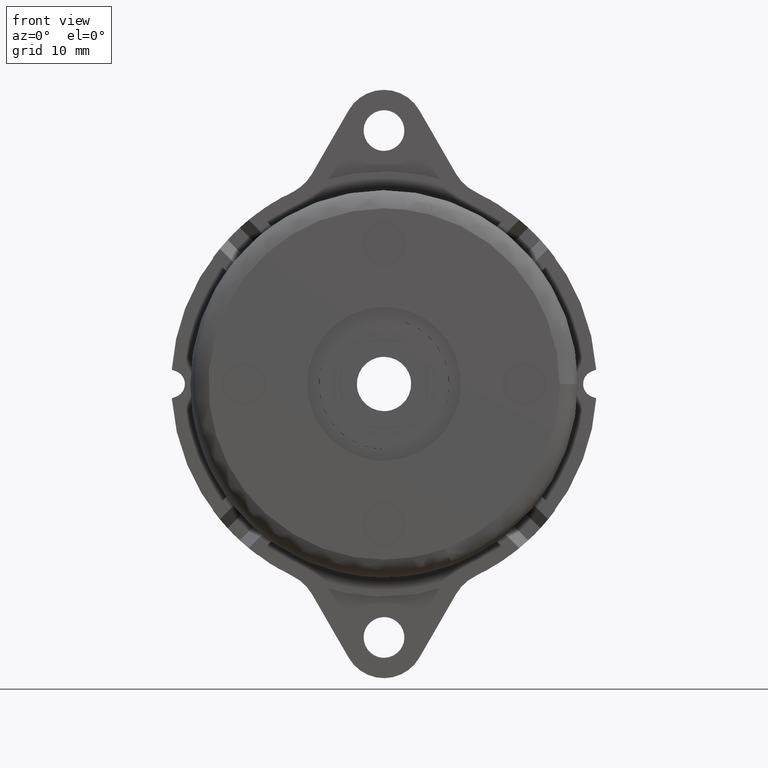
[diagram: clean part render]
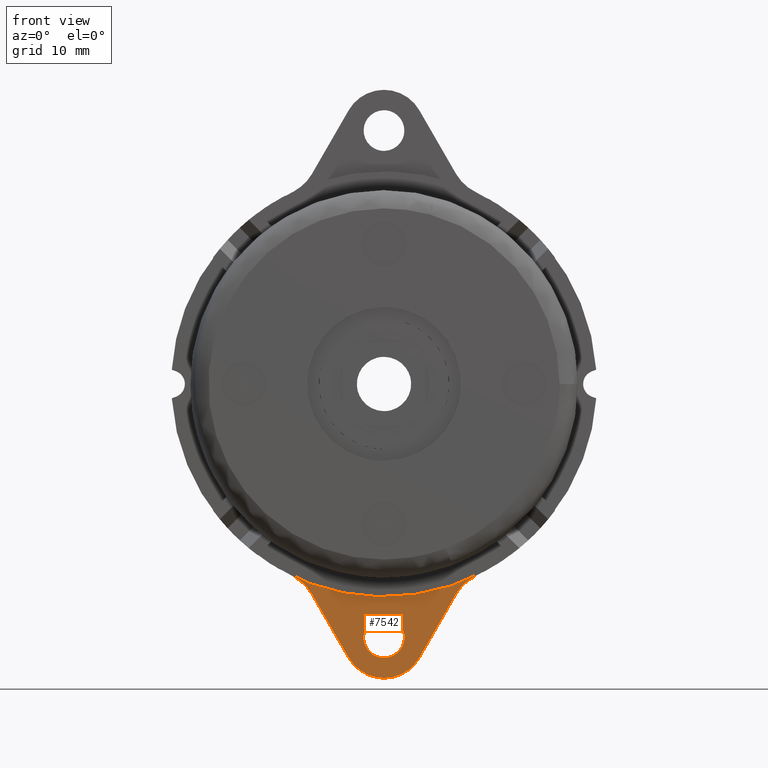
[diagram: same view with one face highlighted and labeled with its STEP entity id]
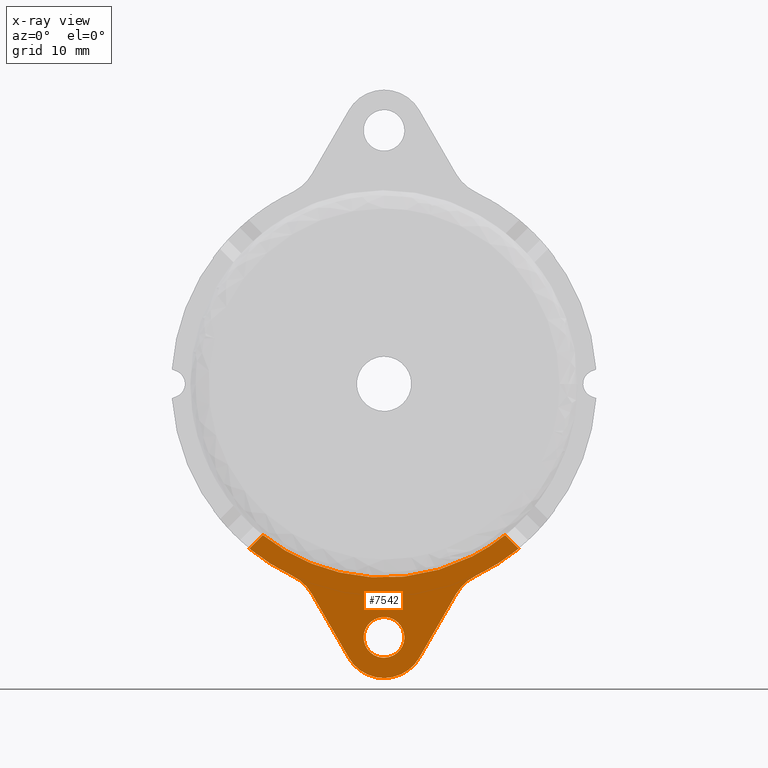
[diagram: x-ray of the same camera — body ghosted, the highlighted face saturated]
A machine part, front view. The second image highlights one B-rep face of the part: STEP entity #7542.
The next image is the same camera in x-ray: the body ghosted, the highlighted face saturated — about 0% of this face is hidden behind the body in this view.
In plain terms, the highlighted face is a freeform B-spline surface patch.
Its self-contained STEP definition (entity closure, byte-faithful):
#3341=CARTESIAN_POINT('',(0.0,-1.600005000000000,-25.750000000000000));
#3342=VERTEX_POINT('',#3341);
#3343=CARTESIAN_POINT('',(-2.243064000891092,-1.600005000000000,-27.823467034505040));
#3344=VERTEX_POINT('',#3343);
#3345=CARTESIAN_POINT('',(0.0,-1.600005000000000,-25.750000000000000));
#3346=CARTESIAN_POINT('',(-2.079878606031343,-1.600005000000000,-25.750000000000014));
#3347=CARTESIAN_POINT('',(-2.243064000891092,-1.600005000000000,-27.823467034505040));
#3355=(BOUNDED_CURVE()B_SPLINE_CURVE(2,(#3345,#3346,#3347),.UNSPECIFIED.,.F.,.U.)B_SPLINE_CURVE_WITH_KNOTS((3,3),(0.0,0.236331300616365),.UNSPECIFIED.)CURVE()GEOMETRIC_REPRESENTATION_ITEM()RATIONAL_B_SPLINE_CURVE((1.0,0.723120658624413,0.969723356137585))REPRESENTATION_ITEM(''));
#3356=EDGE_CURVE('',#3342,#3344,#3355,.T.);
#3397=CARTESIAN_POINT('',(2.243064000891092,-1.600005000000000,-28.176532965494960));
#3398=VERTEX_POINT('',#3397);
#3404=CARTESIAN_POINT('',(2.243064000891092,-1.600005000000000,-28.176532965494964));
#3405=CARTESIAN_POINT('',(2.250000000000000,-1.600005000000001,-28.088402740875065));
#3406=CARTESIAN_POINT('',(2.250000000000000,-1.600005000000000,-28.0));
#3407=CARTESIAN_POINT('',(2.250000000000000,-1.600005000000000,-25.750000000000004));
#3408=CARTESIAN_POINT('',(0.0,-1.600005000000000,-25.750000000000000));
#3416=(BOUNDED_CURVE()B_SPLINE_CURVE(2,(#3404,#3405,#3406,#3407,#3408),.UNSPECIFIED.,.F.,.U.)B_SPLINE_CURVE_WITH_KNOTS((3,2,3),(0.736331300616365,0.750000000000000,1.0),.UNSPECIFIED.)CURVE()GEOMETRIC_REPRESENTATION_ITEM()RATIONAL_B_SPLINE_CURVE((0.969723356137585,0.983986122562134,1.0,0.707106781186547,1.0))REPRESENTATION_ITEM(''));
#3417=EDGE_CURVE('',#3398,#3342,#3416,.T.);
#3440=CARTESIAN_POINT('',(0.0,-1.600005000000000,-30.250000000000000));
#3441=VERTEX_POINT('',#3440);
#3442=CARTESIAN_POINT('',(-2.243064000891092,-1.600005000000001,-27.823467034505036));
#3443=CARTESIAN_POINT('',(-2.250000000000000,-1.600005000000000,-27.911597259124928));
#3444=CARTESIAN_POINT('',(-2.250000000000000,-1.600005000000000,-28.0));
#3445=CARTESIAN_POINT('',(-2.250000000000000,-1.600005000000000,-30.250000000000000));
#3446=CARTESIAN_POINT('',(0.0,-1.600005000000000,-30.250000000000000));
#3454=(BOUNDED_CURVE()B_SPLINE_CURVE(2,(#3442,#3443,#3444,#3445,#3446),.UNSPECIFIED.,.F.,.U.)B_SPLINE_CURVE_WITH_KNOTS((3,2,3),(0.236331300616365,0.250000000000000,0.500000000000000),.UNSPECIFIED.)CURVE()GEOMETRIC_REPRESENTATION_ITEM()RATIONAL_B_SPLINE_CURVE((0.969723356137585,0.983986122562134,1.0,0.707106781186547,1.0))REPRESENTATION_ITEM(''));
#3455=EDGE_CURVE('',#3344,#3441,#3454,.T.);
#3457=CARTESIAN_POINT('',(0.0,-1.600005000000000,-30.250000000000000));
#3458=CARTESIAN_POINT('',(2.079878606031331,-1.600005000000000,-30.249999999999996));
#3459=CARTESIAN_POINT('',(2.243064000891092,-1.600005000000000,-28.176532965494960));
#3467=(BOUNDED_CURVE()B_SPLINE_CURVE(2,(#3457,#3458,#3459),.UNSPECIFIED.,.F.,.U.)B_SPLINE_CURVE_WITH_KNOTS((3,3),(0.500000000000000,0.736331300616364),.UNSPECIFIED.)CURVE()GEOMETRIC_REPRESENTATION_ITEM()RATIONAL_B_SPLINE_CURVE((1.0,0.723120658624414,0.969723356137583))REPRESENTATION_ITEM(''));
#3468=EDGE_CURVE('',#3441,#3398,#3467,.T.);
#3592=CARTESIAN_POINT('',(-4.938769138929567,-1.600004999982687,-20.822309946117930));
#3593=VERTEX_POINT('',#3592);
#3599=CARTESIAN_POINT('',(13.378870266796600,-1.600005000000000,-16.702272138371701));
#3600=VERTEX_POINT('',#3599);
#3601=CARTESIAN_POINT('',(-4.938769138929567,-1.600004999982687,-20.822309946117933));
#3602=CARTESIAN_POINT('',(5.225649678243843,-1.600005000000001,-23.233172821053120));
#3603=CARTESIAN_POINT('',(13.378870266796611,-1.600005000000000,-16.702272138371718));
#3611=(BOUNDED_CURVE()B_SPLINE_CURVE(2,(#3601,#3602,#3603),.UNSPECIFIED.,.F.,.U.)B_SPLINE_CURVE_WITH_KNOTS((3,3),(0.333437135148812,1.0),.UNSPECIFIED.)CURVE()GEOMETRIC_REPRESENTATION_ITEM()RATIONAL_B_SPLINE_CURVE((0.902420347792851,0.853676087752494,1.0))REPRESENTATION_ITEM(''));
#3612=EDGE_CURVE('',#3593,#3600,#3611,.T.);
#4593=CARTESIAN_POINT('',(-13.378870266796600,-1.600005000000000,-16.702272138371701));
#4594=VERTEX_POINT('',#4593);
#4600=CARTESIAN_POINT('',(-13.378870266796611,-1.600005000000000,-16.702272138371711));
#4601=CARTESIAN_POINT('',(-9.622163264353409,-1.600005000000000,-19.711473233867320));
#4602=CARTESIAN_POINT('',(-4.938769138929567,-1.600004999982687,-20.822309946117933));
#4610=(BOUNDED_CURVE()B_SPLINE_CURVE(2,(#4600,#4601,#4602),.UNSPECIFIED.,.F.,.U.)B_SPLINE_CURVE_WITH_KNOTS((3,3),(0.0,0.333437135148812),.UNSPECIFIED.)CURVE()GEOMETRIC_REPRESENTATION_ITEM()RATIONAL_B_SPLINE_CURVE((1.0,0.926803864006935,0.902420347792851))REPRESENTATION_ITEM(''));
#4611=EDGE_CURVE('',#4594,#3593,#4610,.T.);
#7424=CARTESIAN_POINT('',(-16.357729378669038,-1.600005000000000,-15.913175777672080));
#7425=CARTESIAN_POINT('',(16.357729644601370,-1.600005000000000,-15.913175777672080));
#7426=CARTESIAN_POINT('',(-16.357729378669038,-1.600005000000000,-33.289100695060100));
#7427=CARTESIAN_POINT('',(16.357729644601370,-1.600005000000000,-33.289100695060100));
#7428=B_SPLINE_SURFACE_WITH_KNOTS('',1,1,((#7424,#7426),(#7425,#7427)),.UNSPECIFIED.,.F.,.F.,.U.,(2,2),(2,2),(0.0,32.715459023270412),(0.0,17.375924917388019),.UNSPECIFIED.);
#7429=CARTESIAN_POINT('',(10.133289725658880,-1.600005000000000,-21.202981850104401));
#7430=VERTEX_POINT('',#7429);
#7431=CARTESIAN_POINT('',(7.959199999999911,-1.600005000000000,-23.214234999999949));
#7432=VERTEX_POINT('',#7431);
#7433=CARTESIAN_POINT('',(10.133289725658880,-1.600005000000000,-21.202981850104401));
#7434=CARTESIAN_POINT('',(8.734410626478100,-1.600005000000001,-21.871527232962940));
#7435=CARTESIAN_POINT('',(7.959199999999908,-1.600005000000000,-23.214234999999949));
#7443=(BOUNDED_CURVE()B_SPLINE_CURVE(2,(#7433,#7434,#7435),.UNSPECIFIED.,.F.,.U.)CURVE()GEOMETRIC_REPRESENTATION_ITEM()QUASI_UNIFORM_CURVE()RATIONAL_B_SPLINE_CURVE((1.0,0.955133120190338,1.0))REPRESENTATION_ITEM(''));
#7444=EDGE_CURVE('',#7430,#7432,#7443,.T.);
#7445=ORIENTED_EDGE('',*,*,#7444,.F.);
#7446=CARTESIAN_POINT('',(14.872014617590141,-1.600005000000000,-18.195416489165250));
#7447=VERTEX_POINT('',#7446);
#7448=CARTESIAN_POINT('',(10.133289725658869,-1.600005000000000,-21.202981850104401));
#7449=CARTESIAN_POINT('',(12.683522783638523,-1.600005000000000,-19.984179201158412));
#7450=CARTESIAN_POINT('',(14.872014617590111,-1.600005000000000,-18.195416489165229));
#7458=(BOUNDED_CURVE()B_SPLINE_CURVE(2,(#7448,#7449,#7450),.UNSPECIFIED.,.F.,.U.)CURVE()GEOMETRIC_REPRESENTATION_ITEM()QUASI_UNIFORM_CURVE()RATIONAL_B_SPLINE_CURVE((1.0,0.992844256654159,1.0))REPRESENTATION_ITEM(''));
#7459=EDGE_CURVE('',#7430,#7447,#7458,.T.);
#7460=ORIENTED_EDGE('',*,*,#7459,.T.);
#7461=CARTESIAN_POINT('',(13.378870266796600,-1.600005000000000,-16.702272138371701));
#7462=CARTESIAN_POINT('',(14.872014617590141,-1.600005000000000,-18.195416489165250));
#7463=QUASI_UNIFORM_CURVE('',1,(#7461,#7462),.UNSPECIFIED.,.F.,.U.);
#7464=EDGE_CURVE('',#3600,#7447,#7463,.T.);
#7465=ORIENTED_EDGE('',*,*,#7464,.F.);
#7466=ORIENTED_EDGE('',*,*,#3612,.F.);
#7467=ORIENTED_EDGE('',*,*,#4611,.F.);
#7468=CARTESIAN_POINT('',(-14.872014617590160,-1.600005000000000,-18.195416489165201));
#7469=VERTEX_POINT('',#7468);
#7470=CARTESIAN_POINT('',(-14.872014617590160,-1.600005000000000,-18.195416489165201));
#7471=CARTESIAN_POINT('',(-13.378870266796600,-1.600005000000000,-16.702272138371701));
#7472=QUASI_UNIFORM_CURVE('',1,(#7470,#7471),.UNSPECIFIED.,.F.,.U.);
#7473=EDGE_CURVE('',#7469,#4594,#7472,.T.);
#7474=ORIENTED_EDGE('',*,*,#7473,.F.);
#7475=CARTESIAN_POINT('',(-10.133311979991941,-1.600005000000000,-21.202971214340501));
#7476=VERTEX_POINT('',#7475);
#7477=CARTESIAN_POINT('',(-14.872014617590160,-1.600005000000000,-18.195416489165190));
#7478=CARTESIAN_POINT('',(-12.683532470597809,-1.600005000000001,-19.984171283527065));
#7479=CARTESIAN_POINT('',(-10.133311979991941,-1.600005000000000,-21.202971214340501));
#7487=(BOUNDED_CURVE()B_SPLINE_CURVE(2,(#7477,#7478,#7479),.UNSPECIFIED.,.F.,.U.)CURVE()GEOMETRIC_REPRESENTATION_ITEM()QUASI_UNIFORM_CURVE()RATIONAL_B_SPLINE_CURVE((1.0,0.992844319322885,1.0))REPRESENTATION_ITEM(''));
#7488=EDGE_CURVE('',#7469,#7476,#7487,.T.);
#7489=ORIENTED_EDGE('',*,*,#7488,.T.);
#7490=CARTESIAN_POINT('',(-7.959210000000000,-1.600005000000000,-23.214234999999949));
#7491=VERTEX_POINT('',#7490);
#7492=CARTESIAN_POINT('',(-7.959210000000000,-1.600005000000000,-23.214234999999949));
#7493=CARTESIAN_POINT('',(-8.734427973076118,-1.600005000000000,-21.871523687063565));
#7494=CARTESIAN_POINT('',(-10.133311979991941,-1.600005000000000,-21.202971214340501));
#7502=(BOUNDED_CURVE()B_SPLINE_CURVE(2,(#7492,#7493,#7494),.UNSPECIFIED.,.F.,.U.)CURVE()GEOMETRIC_REPRESENTATION_ITEM()QUASI_UNIFORM_CURVE()RATIONAL_B_SPLINE_CURVE((1.0,0.955134004243989,1.0))REPRESENTATION_ITEM(''));
#7503=EDGE_CURVE('',#7491,#7476,#7502,.T.);
#7504=ORIENTED_EDGE('',*,*,#7503,.F.);
#7505=CARTESIAN_POINT('',(-3.897125042146750,-1.600005000000000,-30.249994926999399));
#7506=VERTEX_POINT('',#7505);
#7507=CARTESIAN_POINT('',(-3.897125042146750,-1.600005000000000,-30.249994926999399));
#7508=CARTESIAN_POINT('',(-7.959210000000000,-1.600005000000000,-23.214234999999949));
#7509=QUASI_UNIFORM_CURVE('',1,(#7507,#7508),.UNSPECIFIED.,.F.,.U.);
#7510=EDGE_CURVE('',#7506,#7491,#7509,.T.);
#7511=ORIENTED_EDGE('',*,*,#7510,.F.);
#7512=CARTESIAN_POINT('',(3.897113138932185,-1.600005000000000,-30.250002040523949));
#7513=VERTEX_POINT('',#7512);
#7514=CARTESIAN_POINT('',(-3.897125042146755,-1.600005000000000,-30.249994926999399));
#7515=CARTESIAN_POINT('',(-2.598088125369480,-1.600005000000001,-32.500000127029665));
#7516=CARTESIAN_POINT('',(-0.000008005106092,-1.600005000000000,-32.500002498205177));
#7517=CARTESIAN_POINT('',(2.598072115157295,-1.600005000000001,-32.500004869380696));
#7518=CARTESIAN_POINT('',(3.897113138932180,-1.600005000000000,-30.250002040523949));
#7526=(BOUNDED_CURVE()B_SPLINE_CURVE(2,(#7514,#7515,#7516,#7517,#7518),.UNSPECIFIED.,.F.,.U.)B_SPLINE_CURVE_WITH_KNOTS((3,2,3),(0.0,0.500000000000000,1.0),.UNSPECIFIED.)CURVE()GEOMETRIC_REPRESENTATION_ITEM()RATIONAL_B_SPLINE_CURVE((1.0,0.866025282689544,1.0,0.866025282689544,1.0))REPRESENTATION_ITEM(''));
#7527=EDGE_CURVE('',#7506,#7513,#7526,.T.);
#7528=ORIENTED_EDGE('',*,*,#7527,.T.);
#7529=CARTESIAN_POINT('',(7.959199999999911,-1.600005000000000,-23.214234999999949));
#7530=CARTESIAN_POINT('',(3.897113138932185,-1.600005000000000,-30.250002040523949));
#7531=QUASI_UNIFORM_CURVE('',1,(#7529,#7530),.UNSPECIFIED.,.F.,.U.);
#7532=EDGE_CURVE('',#7432,#7513,#7531,.T.);
#7533=ORIENTED_EDGE('',*,*,#7532,.F.);
#7534=EDGE_LOOP('',(#7445,#7460,#7465,#7466,#7467,#7474,#7489,#7504,#7511,#7528,#7533));
#7535=FACE_OUTER_BOUND('',#7534,.T.);
#7536=ORIENTED_EDGE('',*,*,#3468,.F.);
#7537=ORIENTED_EDGE('',*,*,#3455,.F.);
#7538=ORIENTED_EDGE('',*,*,#3356,.F.);
#7539=ORIENTED_EDGE('',*,*,#3417,.F.);
#7540=EDGE_LOOP('',(#7536,#7537,#7538,#7539));
#7541=FACE_BOUND('',#7540,.T.);
#7542=ADVANCED_FACE('',(#7535,#7541),#7428,.F.);